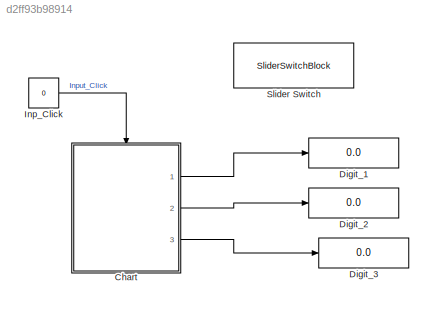
MODEL slx_d2ff93b98914
KIND model
CONFIG AbsTol = auto
CONFIG EnableMultiTasking = off
CONFIG FixedStep = auto
CONFIG MaxStep = auto
CONFIG MinStep = auto
CONFIG RelTol = 1e-3
CONFIG SampleTimeConstraint = Unconstrained
CONFIG Solver = VariableStepAuto
CONFIG SolverName = VariableStepAuto
CONFIG StartTime = 0.0
CONFIG StopTime = inf
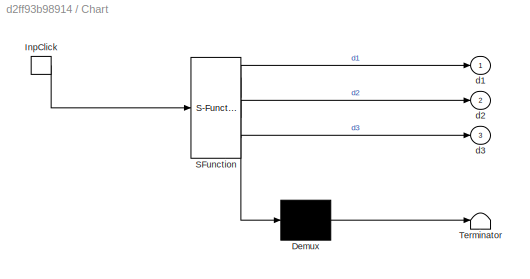
BLOCK [SubSystem] Chart
  ErrorFcn = Stateflow.Translate.translate
  PermitHierarchicalResolution = ExplicitOnly
  Ports = [0, 3, 0, 1]
  RequestExecContextInheritance = off
  SFBlockType = Chart
  TreatAsAtomicUnit = on
BLOCK [Demux] Chart/ Demux 
  Outputs = 1
  Ports = [1, 1]
BLOCK [S-Function] Chart/ SFunction 
  EnableBusSupport = on
  FunctionName = sf_sfun
  PortCounts = [1 4]
  Ports = [1, 4]
  SFcnIsStateOwnerBlock = off
  SFunctionDeploymentMode = off
  Tag = Stateflow S-Function 3
BLOCK [Terminator] Chart/ Terminator 
BLOCK [TriggerPort] Chart/InpClick
  Ports = [0, 1]
  ShowOutputPort = on
  StatesWhenEnabling = held
  TriggerType = either
  VariantControl = (inherit)
BLOCK [Outport] Chart/d1
BLOCK [Outport] Chart/d2
  Port = 2
BLOCK [Outport] Chart/d3
  Port = 3
BLOCK [Display] Digit_1
  Decimation = 1
  Ports = [1]
BLOCK [Display] Digit_2
  Decimation = 1
  Ports = [1]
BLOCK [Display] Digit_3
  Decimation = 1
  Ports = [1]
BLOCK [Constant] Inp_Click
  Value = 0
BLOCK [SliderSwitchBlock] Slider Switch
LINE Chart:1 -> Digit_1:1
LINE Chart:2 -> Digit_2:1
LINE Chart:3 -> Digit_3:1
LINE Inp_Click:1 -> Chart:trigger
CHART Chart states=18 transitions=18
  STATE_LABEL 'Digit_1'
  STATE_LABEL 'One\nen: d1=1;'
  STATE_LABEL 'Two\nen: d1=2;'
  STATE_LABEL 'Zero\nen: d1=0;'
  STATE_LABEL 'Three\nen: d1=3;'
  STATE_LABEL 'Four\nen: d1=4;'
  STATE_LABEL 'InpClick'
  STATE_LABEL 'InpClick'
  STATE_LABEL 'InpClick'
  STATE_LABEL 'InpClick/{Digit_2.Inc2;}'
  STATE_LABEL 'InpClick'
  STATE_LABEL 'One\nen: d1=1;'
  STATE_LABEL 'Two\nen: d1=2;'
  STATE_LABEL 'Zero\nen: d1=0;'
  STATE_LABEL 'Three\nen: d1=3;'
  STATE_LABEL 'Four\nen: d1=4;'
  STATE_LABEL 'Digit_2'
  STATE_LABEL 'One\nen: d2=1;'
  STATE_LABEL 'Two\nen: d2=2;'
  STATE_LABEL 'Zero\nen: d2=0;'
  STATE_LABEL 'Three\nen: d2=3;'
  STATE_LABEL 'Four\nen: d2=4;'
  STATE_LABEL 'Inc2'
  STATE_LABEL 'Inc2'
  STATE_LABEL 'Inc2'
  STATE_LABEL 'Inc2/{Digit_3.Inc3;}'
  STATE_LABEL 'Inc2'
  STATE_LABEL 'One\nen: d2=1;'
  STATE_LABEL 'Two\nen: d2=2;'
  STATE_LABEL 'Zero\nen: d2=0;'
  STATE_LABEL 'Three\nen: d2=3;'
  STATE_LABEL 'Four\nen: d2=4;'
  STATE_LABEL 'Digit_3'
  STATE_LABEL 'One\nen: d3=1;'
  STATE_LABEL 'Two\nen: d3=2;'
  STATE_LABEL 'Zero\nen: d3=0;'
  STATE_LABEL 'Three\nen: d3=3;'
  STATE_LABEL 'Four\nen: d3=4;'
  STATE_LABEL 'Inc3'
  STATE_LABEL 'Inc3'
CHART  states=0 transitions=0
